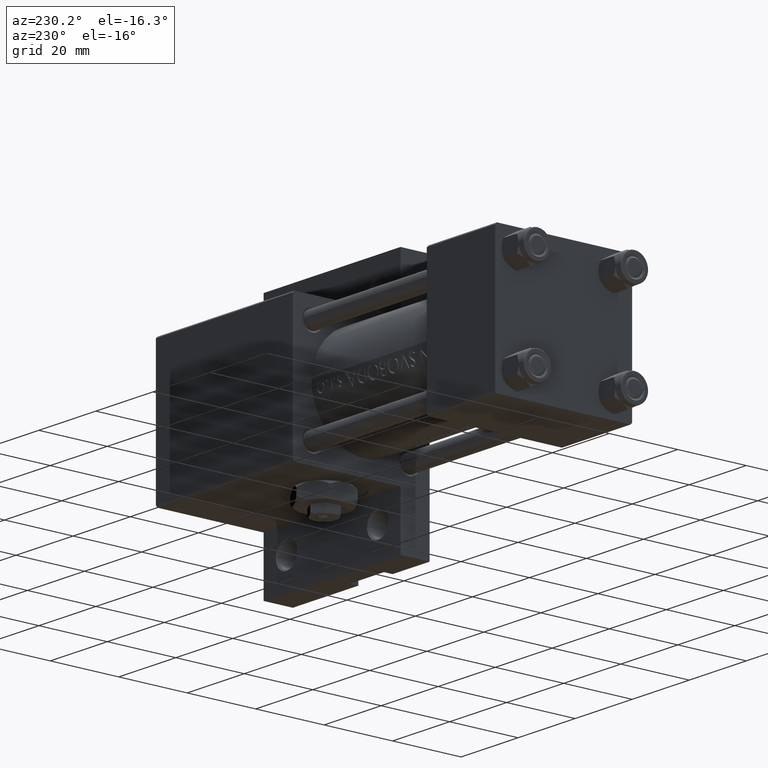
[diagram: clean part render]
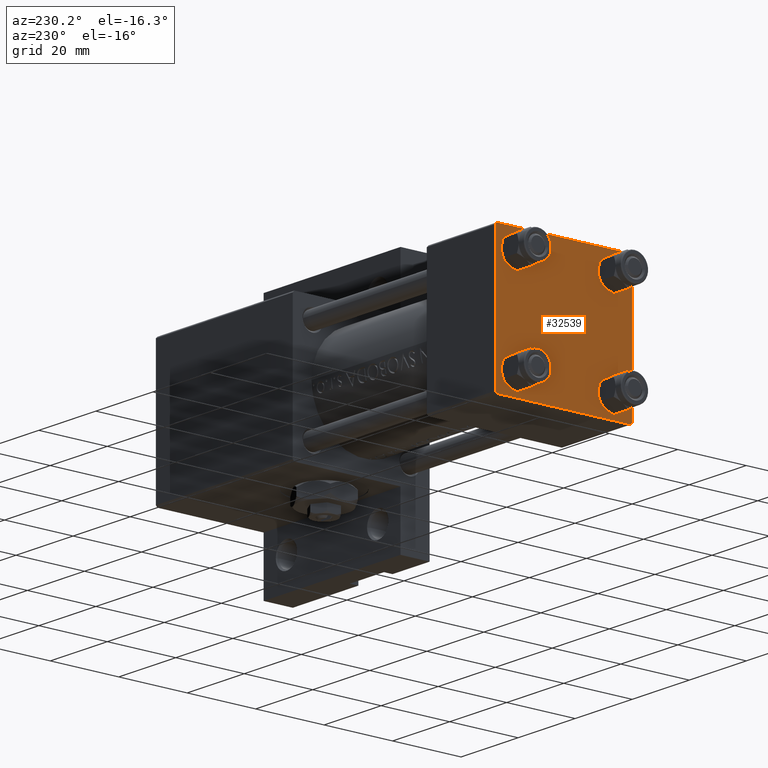
[diagram: same view with one face highlighted and labeled with its STEP entity id]
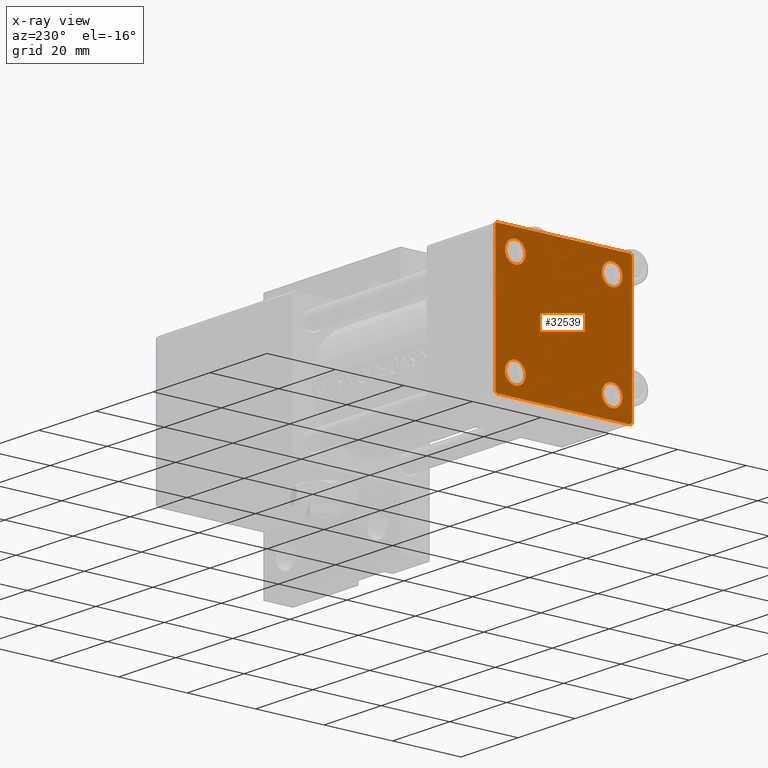
[diagram: x-ray of the same camera — body ghosted, the highlighted face saturated]
A machine part, auxiliary view. The second image highlights one B-rep face of the part: STEP entity #32539.
The next image is the same camera in x-ray: the body ghosted, the highlighted face saturated — about 0% of this face is hidden behind the body in this view.
In plain terms, the highlighted planar face has unit normal (-1, 0, -0).
Its self-contained STEP definition (entity closure, byte-faithful):
#233 = VECTOR ( 'NONE', #1289, 1000.000000000000000 ) ;
#498 = ORIENTED_EDGE ( 'NONE', *, *, #28383, .T. ) ;
#795 = CARTESIAN_POINT ( 'NONE',  ( 0.000000000000000000, 14.14999999999999858, 17.14999999999998437 ) ) ;
#872 = ORIENTED_EDGE ( 'NONE', *, *, #38663, .F. ) ;
#1038 = CARTESIAN_POINT ( 'NONE',  ( -0.000000000000000000, 19.74999999999986855, -19.75000000000014211 ) ) ;
#1289 = DIRECTION ( 'NONE',  ( -0.000000000000000000, -0.7071067811865524577, -0.7071067811865426878 ) ) ;
#2047 = CARTESIAN_POINT ( 'NONE',  ( 0.000000000000000000, 19.50000000000000711, -20.00000000000000711 ) ) ;
#2518 = VERTEX_POINT ( 'NONE', #39823 ) ;
#3107 = PLANE ( 'NONE',  #30588 ) ;
#3401 = CARTESIAN_POINT ( 'NONE',  ( 0.000000000000000000, 20.00000000000000000, 19.49999999999999289 ) ) ;
#4556 = CIRCLE ( 'NONE', #19687, 2.999999999999983569 ) ;
#5002 = EDGE_CURVE ( 'NONE', #28351, #13922, #26502, .T. ) ;
#5031 = CIRCLE ( 'NONE', #20161, 3.000000000000004441 ) ;
#5457 = VERTEX_POINT ( 'NONE', #2047 ) ;
#5936 = EDGE_CURVE ( 'NONE', #13922, #28351, #5031, .T. ) ;
#7786 = AXIS2_PLACEMENT_3D ( 'NONE', #24370, #39589, #28355 ) ;
#7818 = CARTESIAN_POINT ( 'NONE',  ( 0.000000000000000000, -14.14999999999999503, 14.15000000000000391 ) ) ;
#7894 = EDGE_CURVE ( 'NONE', #17619, #5457, #8531, .T. ) ;
#8220 = EDGE_LOOP ( 'NONE', ( #27236, #17166 ) ) ;
#8531 = LINE ( 'NONE', #1038, #233 ) ;
#9531 = VERTEX_POINT ( 'NONE', #48704 ) ;
#9537 = VERTEX_POINT ( 'NONE', #25247 ) ;
#10163 = CIRCLE ( 'NONE', #7786, 2.999999999999983569 ) ;
#10285 = CARTESIAN_POINT ( 'NONE',  ( 0.000000000000000000, 14.14999999999999858, 14.15000000000000036 ) ) ;
#10575 = ORIENTED_EDGE ( 'NONE', *, *, #5936, .T. ) ;
#10580 = DIRECTION ( 'NONE',  ( -1.000000000000000000, 0.000000000000000000, -0.000000000000000000 ) ) ;
#11063 = CIRCLE ( 'NONE', #17412, 2.999999999999983569 ) ;
#11108 = DIRECTION ( 'NONE',  ( 1.000000000000000000, 0.000000000000000000, 0.000000000000000000 ) ) ;
#11160 = DIRECTION ( 'NONE',  ( 1.000000000000000000, 0.000000000000000000, 0.000000000000000000 ) ) ;
#11426 = CARTESIAN_POINT ( 'NONE',  ( 0.000000000000000000, -14.14999999999999503, 14.15000000000000391 ) ) ;
#11707 = AXIS2_PLACEMENT_3D ( 'NONE', #10285, #22000, #18258 ) ;
#11730 = EDGE_CURVE ( 'NONE', #45369, #36445, #26852, .T. ) ;
#12374 = CARTESIAN_POINT ( 'NONE',  ( -0.000000000000000000, 19.75000000000013500, 19.74999999999986144 ) ) ;
#12777 = DIRECTION ( 'NONE',  ( 0.000000000000000000, -1.000000000000000000, 1.734723475976807094E-16 ) ) ;
#13138 = ORIENTED_EDGE ( 'NONE', *, *, #7894, .T. ) ;
#13309 = VERTEX_POINT ( 'NONE', #24214 ) ;
#13922 = VERTEX_POINT ( 'NONE', #47743 ) ;
#14331 = FACE_BOUND ( 'NONE', #26693, .T. ) ;
#14882 = CARTESIAN_POINT ( 'NONE',  ( 0.000000000000000000, -19.75000000000020961, -19.74999999999979394 ) ) ;
#15010 = DIRECTION ( 'NONE',  ( 0.000000000000000000, 0.000000000000000000, -1.000000000000000000 ) ) ;
#15135 = DIRECTION ( 'NONE',  ( 0.000000000000000000, -1.000000000000000000, -2.602085213965210149E-16 ) ) ;
#15291 = DIRECTION ( 'NONE',  ( 1.000000000000000000, 0.000000000000000000, 0.000000000000000000 ) ) ;
#15750 = AXIS2_PLACEMENT_3D ( 'NONE', #48537, #11108, #44780 ) ;
#15941 = EDGE_CURVE ( 'NONE', #36445, #17619, #21740, .T. ) ;
#16033 = LINE ( 'NONE', #31002, #30767 ) ;
#16146 = CIRCLE ( 'NONE', #22528, 2.999999999999983569 ) ;
#16463 = CARTESIAN_POINT ( 'NONE',  ( 0.000000000000000000, 14.14999999999999858, -11.15000000000001812 ) ) ;
#16523 = LINE ( 'NONE', #46957, #49069 ) ;
#16989 = EDGE_CURVE ( 'NONE', #9531, #24094, #41069, .T. ) ;
#17166 = ORIENTED_EDGE ( 'NONE', *, *, #20277, .T. ) ;
#17391 = VERTEX_POINT ( 'NONE', #16463 ) ;
#17412 = AXIS2_PLACEMENT_3D ( 'NONE', #30583, #11160, #19364 ) ;
#17540 = ORIENTED_EDGE ( 'NONE', *, *, #47299, .T. ) ;
#17619 = VERTEX_POINT ( 'NONE', #31597 ) ;
#18258 = DIRECTION ( 'NONE',  ( 0.000000000000000000, 0.000000000000000000, 1.000000000000000000 ) ) ;
#18485 = EDGE_CURVE ( 'NONE', #35592, #9537, #35565, .T. ) ;
#18636 = EDGE_CURVE ( 'NONE', #45369, #46278, #44584, .T. ) ;
#19050 = DIRECTION ( 'NONE',  ( 0.000000000000000000, 8.673617379884036705E-17, -1.000000000000000000 ) ) ;
#19364 = DIRECTION ( 'NONE',  ( 0.000000000000000000, 0.000000000000000000, 1.000000000000000000 ) ) ;
#19674 = EDGE_CURVE ( 'NONE', #45178, #17391, #10163, .T. ) ;
#19687 = AXIS2_PLACEMENT_3D ( 'NONE', #11426, #49104, #29870 ) ;
#20161 = AXIS2_PLACEMENT_3D ( 'NONE', #26178, #21951, #44408 ) ;
#20277 = EDGE_CURVE ( 'NONE', #9537, #35592, #21330, .T. ) ;
#20804 = ORIENTED_EDGE ( 'NONE', *, *, #15941, .T. ) ;
#21330 = CIRCLE ( 'NONE', #15750, 2.999999999999983569 ) ;
#21740 = LINE ( 'NONE', #33462, #41108 ) ;
#21914 = EDGE_CURVE ( 'NONE', #2518, #13309, #4556, .T. ) ;
#21951 = DIRECTION ( 'NONE',  ( 1.000000000000000000, 0.000000000000000000, 0.000000000000000000 ) ) ;
#22000 = DIRECTION ( 'NONE',  ( 1.000000000000000000, 0.000000000000000000, 0.000000000000000000 ) ) ;
#22528 = AXIS2_PLACEMENT_3D ( 'NONE', #7818, #15291, #42214 ) ;
#23392 = CARTESIAN_POINT ( 'NONE',  ( -0.000000000000000000, -19.74999999999992539, 19.75000000000006395 ) ) ;
#23837 = DIRECTION ( 'NONE',  ( 0.000000000000000000, 0.7071067811865425767, -0.7071067811865525687 ) ) ;
#24094 = VERTEX_POINT ( 'NONE', #25834 ) ;
#24214 = CARTESIAN_POINT ( 'NONE',  ( 0.000000000000000000, -14.14999999999999503, 17.14999999999998792 ) ) ;
#24370 = CARTESIAN_POINT ( 'NONE',  ( 0.000000000000000000, 14.14999999999999858, -14.15000000000000036 ) ) ;
#24884 = CARTESIAN_POINT ( 'NONE',  ( 0.000000000000000000, -20.00000000000000355, 19.49999999999998224 ) ) ;
#24999 = VECTOR ( 'NONE', #23837, 999.9999999999998863 ) ;
#25166 = LINE ( 'NONE', #23392, #35327 ) ;
#25247 = CARTESIAN_POINT ( 'NONE',  ( 0.000000000000000000, 14.14999999999999858, 11.15000000000001990 ) ) ;
#25299 = FACE_BOUND ( 'NONE', #8220, .T. ) ;
#25834 = CARTESIAN_POINT ( 'NONE',  ( 0.000000000000000000, -20.00000000000000000, -19.49999999999999645 ) ) ;
#26178 = CARTESIAN_POINT ( 'NONE',  ( 0.000000000000000000, -14.14999999999999503, -14.15000000000000391 ) ) ;
#26502 = CIRCLE ( 'NONE', #44064, 3.000000000000004441 ) ;
#26693 = EDGE_LOOP ( 'NONE', ( #10575, #33008 ) ) ;
#26852 = LINE ( 'NONE', #12374, #24999 ) ;
#26971 = EDGE_CURVE ( 'NONE', #13309, #2518, #16146, .T. ) ;
#27236 = ORIENTED_EDGE ( 'NONE', *, *, #18485, .T. ) ;
#28145 = EDGE_LOOP ( 'NONE', ( #17540, #32185 ) ) ;
#28351 = VERTEX_POINT ( 'NONE', #37144 ) ;
#28355 = DIRECTION ( 'NONE',  ( 0.000000000000000000, 0.000000000000000000, 1.000000000000000000 ) ) ;
#28371 = CARTESIAN_POINT ( 'NONE',  ( 0.000000000000000000, -14.14999999999999503, -14.15000000000000391 ) ) ;
#28383 = EDGE_CURVE ( 'NONE', #43587, #46278, #25166, .T. ) ;
#29870 = DIRECTION ( 'NONE',  ( 0.000000000000000000, 0.000000000000000000, 1.000000000000000000 ) ) ;
#30583 = CARTESIAN_POINT ( 'NONE',  ( 0.000000000000000000, 14.14999999999999858, -14.15000000000000036 ) ) ;
#30588 = AXIS2_PLACEMENT_3D ( 'NONE', #48264, #10580, #36274 ) ;
#30767 = VECTOR ( 'NONE', #19050, 1000.000000000000000 ) ;
#30796 = VECTOR ( 'NONE', #15135, 1000.000000000000000 ) ;
#31002 = CARTESIAN_POINT ( 'NONE',  ( 0.000000000000000000, -20.00000000000000355, 19.99999999999998934 ) ) ;
#31116 = DIRECTION ( 'NONE',  ( -0.000000000000000000, 0.7071067811865500152, 0.7071067811865451302 ) ) ;
#31597 = CARTESIAN_POINT ( 'NONE',  ( 0.000000000000000000, 20.00000000000000000, -19.50000000000002132 ) ) ;
#32185 = ORIENTED_EDGE ( 'NONE', *, *, #19674, .T. ) ;
#32539 = ADVANCED_FACE ( 'NONE', ( #48515, #14331, #48754, #25299, #47769 ), #3107, .T. ) ;
#33008 = ORIENTED_EDGE ( 'NONE', *, *, #5002, .T. ) ;
#33462 = CARTESIAN_POINT ( 'NONE',  ( 0.000000000000000000, 20.00000000000000000, 20.00000000000000000 ) ) ;
#35327 = VECTOR ( 'NONE', #31116, 1000.000000000000114 ) ;
#35565 = CIRCLE ( 'NONE', #11707, 2.999999999999983569 ) ;
#35592 = VERTEX_POINT ( 'NONE', #795 ) ;
#36113 = EDGE_CURVE ( 'NONE', #5457, #9531, #16523, .T. ) ;
#36274 = DIRECTION ( 'NONE',  ( -0.000000000000000000, 0.000000000000000000, 1.000000000000000000 ) ) ;
#36445 = VERTEX_POINT ( 'NONE', #3401 ) ;
#36646 = CARTESIAN_POINT ( 'NONE',  ( 0.000000000000000000, 19.50000000000000000, 20.00000000000000000 ) ) ;
#36816 = DIRECTION ( 'NONE',  ( 0.000000000000000000, -0.7071067811865401342, 0.7071067811865549002 ) ) ;
#36822 = ORIENTED_EDGE ( 'NONE', *, *, #18636, .F. ) ;
#37144 = CARTESIAN_POINT ( 'NONE',  ( 0.000000000000000000, -14.14999999999999503, -17.15000000000000924 ) ) ;
#37606 = ORIENTED_EDGE ( 'NONE', *, *, #36113, .T. ) ;
#38156 = ORIENTED_EDGE ( 'NONE', *, *, #26971, .T. ) ;
#38663 = EDGE_CURVE ( 'NONE', #43587, #24094, #16033, .T. ) ;
#38745 = CARTESIAN_POINT ( 'NONE',  ( 0.000000000000000000, -19.49999999999999289, 19.99999999999998934 ) ) ;
#39352 = DIRECTION ( 'NONE',  ( 0.000000000000000000, 0.000000000000000000, 1.000000000000000000 ) ) ;
#39533 = VECTOR ( 'NONE', #36816, 1000.000000000000000 ) ;
#39589 = DIRECTION ( 'NONE',  ( 1.000000000000000000, 0.000000000000000000, 0.000000000000000000 ) ) ;
#39595 = ORIENTED_EDGE ( 'NONE', *, *, #21914, .T. ) ;
#39823 = CARTESIAN_POINT ( 'NONE',  ( 0.000000000000000000, -14.14999999999999503, 11.15000000000002345 ) ) ;
#41025 = DIRECTION ( 'NONE',  ( 1.000000000000000000, 0.000000000000000000, 0.000000000000000000 ) ) ;
#41069 = LINE ( 'NONE', #14882, #39533 ) ;
#41108 = VECTOR ( 'NONE', #15010, 1000.000000000000000 ) ;
#42214 = DIRECTION ( 'NONE',  ( 0.000000000000000000, 0.000000000000000000, 1.000000000000000000 ) ) ;
#43587 = VERTEX_POINT ( 'NONE', #24884 ) ;
#43754 = EDGE_LOOP ( 'NONE', ( #38156, #39595 ) ) ;
#44064 = AXIS2_PLACEMENT_3D ( 'NONE', #28371, #41025, #39352 ) ;
#44408 = DIRECTION ( 'NONE',  ( 0.000000000000000000, 0.000000000000000000, 1.000000000000000000 ) ) ;
#44584 = LINE ( 'NONE', #49324, #30796 ) ;
#44780 = DIRECTION ( 'NONE',  ( 0.000000000000000000, 0.000000000000000000, 1.000000000000000000 ) ) ;
#45178 = VERTEX_POINT ( 'NONE', #46653 ) ;
#45369 = VERTEX_POINT ( 'NONE', #36646 ) ;
#45771 = EDGE_LOOP ( 'NONE', ( #20804, #13138, #37606, #48317, #872, #498, #36822, #47432 ) ) ;
#46278 = VERTEX_POINT ( 'NONE', #38745 ) ;
#46653 = CARTESIAN_POINT ( 'NONE',  ( 0.000000000000000000, 14.14999999999999858, -17.14999999999998437 ) ) ;
#46957 = CARTESIAN_POINT ( 'NONE',  ( 0.000000000000000000, 20.00000000000000000, -20.00000000000000711 ) ) ;
#47299 = EDGE_CURVE ( 'NONE', #17391, #45178, #11063, .T. ) ;
#47432 = ORIENTED_EDGE ( 'NONE', *, *, #11730, .T. ) ;
#47743 = CARTESIAN_POINT ( 'NONE',  ( 0.000000000000000000, -14.14999999999999503, -11.15000000000000036 ) ) ;
#47769 = FACE_OUTER_BOUND ( 'NONE', #45771, .T. ) ;
#48264 = CARTESIAN_POINT ( 'NONE',  ( 0.000000000000000000, 0.000000000000000000, 0.000000000000000000 ) ) ;
#48317 = ORIENTED_EDGE ( 'NONE', *, *, #16989, .T. ) ;
#48515 = FACE_BOUND ( 'NONE', #43754, .T. ) ;
#48537 = CARTESIAN_POINT ( 'NONE',  ( 0.000000000000000000, 14.14999999999999858, 14.15000000000000036 ) ) ;
#48704 = CARTESIAN_POINT ( 'NONE',  ( 0.000000000000000000, -19.50000000000000711, -20.00000000000000000 ) ) ;
#48754 = FACE_BOUND ( 'NONE', #28145, .T. ) ;
#49069 = VECTOR ( 'NONE', #12777, 1000.000000000000000 ) ;
#49104 = DIRECTION ( 'NONE',  ( 1.000000000000000000, 0.000000000000000000, 0.000000000000000000 ) ) ;
#49324 = CARTESIAN_POINT ( 'NONE',  ( 0.000000000000000000, 20.00000000000000000, 20.00000000000000000 ) ) ;